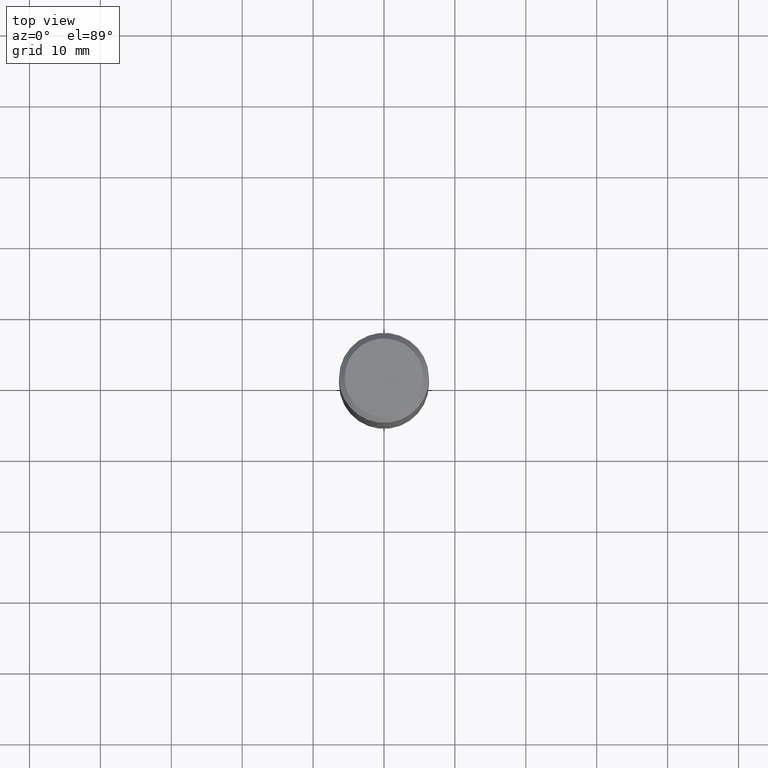
[diagram: clean part render]
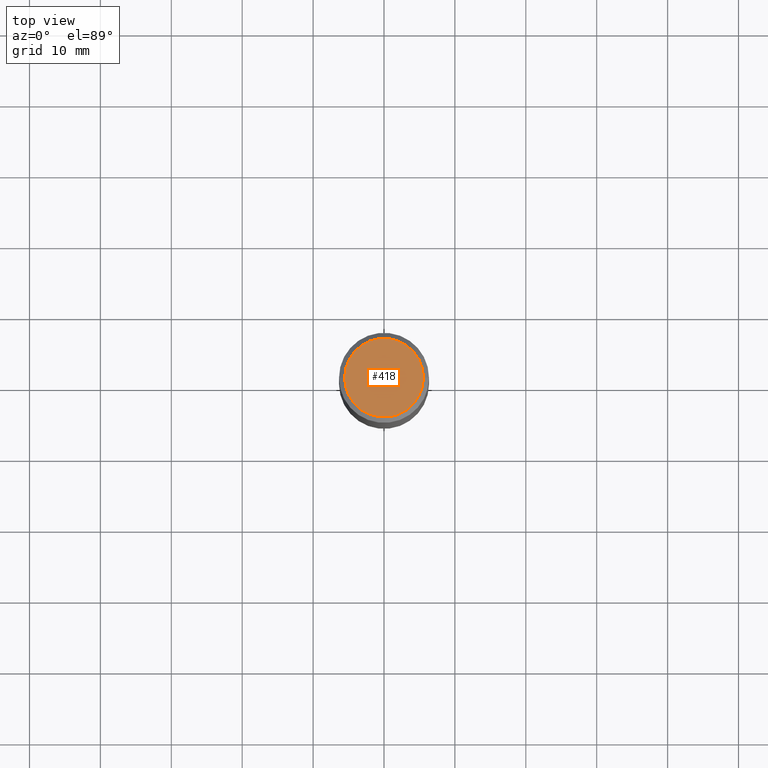
[diagram: same view with one face highlighted and labeled with its STEP entity id]
A machine part, top view. The second image highlights one B-rep face of the part: STEP entity #418.
In plain terms, the highlighted planar face has unit normal (0, -0, -1).
Its self-contained STEP definition (entity closure, byte-faithful):
#8 = DIRECTION ( 'NONE',  ( -1.000000000000000000, 6.982962677686265922E-15, -4.876176775795935793E-29 ) ) ;
#24 = DIRECTION ( 'NONE',  ( 1.000000000000000000, -6.982962677686266711E-15, 4.880466792705916279E-29 ) ) ;
#43 = CIRCLE ( 'NONE', #247, 0.2187500000000002498 ) ;
#67 = EDGE_CURVE ( 'NONE', #400, #317, #43, .T. ) ;
#77 = CARTESIAN_POINT ( 'NONE',  ( 0.2187500000000002498, -1.662483614147128641E-15, -4.394532330998037149E-16 ) ) ;
#84 = PLANE ( 'NONE',  #265 ) ;
#117 = EDGE_LOOP ( 'NONE', ( #364, #354 ) ) ;
#125 = CARTESIAN_POINT ( 'NONE',  ( 5.373345866614013448E-45, -7.671713813311452234E-31, -2.197266165499074041E-16 ) ) ;
#149 = DIRECTION ( 'NONE',  ( 1.000000000000000000, -6.982962677686266711E-15, 4.880466792705916279E-29 ) ) ;
#202 = DIRECTION ( 'NONE',  ( -2.445468806185136597E-29, 3.491481338843145583E-15, 1.000000000000000000 ) ) ;
#218 = EDGE_CURVE ( 'NONE', #317, #400, #233, .T. ) ;
#224 = CARTESIAN_POINT ( 'NONE',  ( 1.074669173322802939E-44, -1.534342762662290622E-30, -4.394532330998148576E-16 ) ) ;
#233 = CIRCLE ( 'NONE', #245, 0.2187500000000002498 ) ;
#245 = AXIS2_PLACEMENT_3D ( 'NONE', #461, #202, #149 ) ;
#247 = AXIS2_PLACEMENT_3D ( 'NONE', #224, #451, #24 ) ;
#265 = AXIS2_PLACEMENT_3D ( 'NONE', #125, #392, #8 ) ;
#272 = FACE_OUTER_BOUND ( 'NONE', #117, .T. ) ;
#317 = VERTEX_POINT ( 'NONE', #384 ) ;
#354 = ORIENTED_EDGE ( 'NONE', *, *, #67, .T. ) ;
#364 = ORIENTED_EDGE ( 'NONE', *, *, #218, .T. ) ;
#384 = CARTESIAN_POINT ( 'NONE',  ( -0.2187500000000002498, 1.582077481663294604E-15, -4.394532330998257537E-16 ) ) ;
#392 = DIRECTION ( 'NONE',  ( 2.438088387897960049E-29, -3.491481338843145188E-15, -1.000000000000000000 ) ) ;
#400 = VERTEX_POINT ( 'NONE', #77 ) ;
#418 = ADVANCED_FACE ( 'NONE', ( #272 ), #84, .F. ) ;
#451 = DIRECTION ( 'NONE',  ( -2.445468806185136597E-29, 3.491481338843145583E-15, 1.000000000000000000 ) ) ;
#461 = CARTESIAN_POINT ( 'NONE',  ( 1.074669173322802939E-44, -1.534342762662290622E-30, -4.394532330998148576E-16 ) ) ;